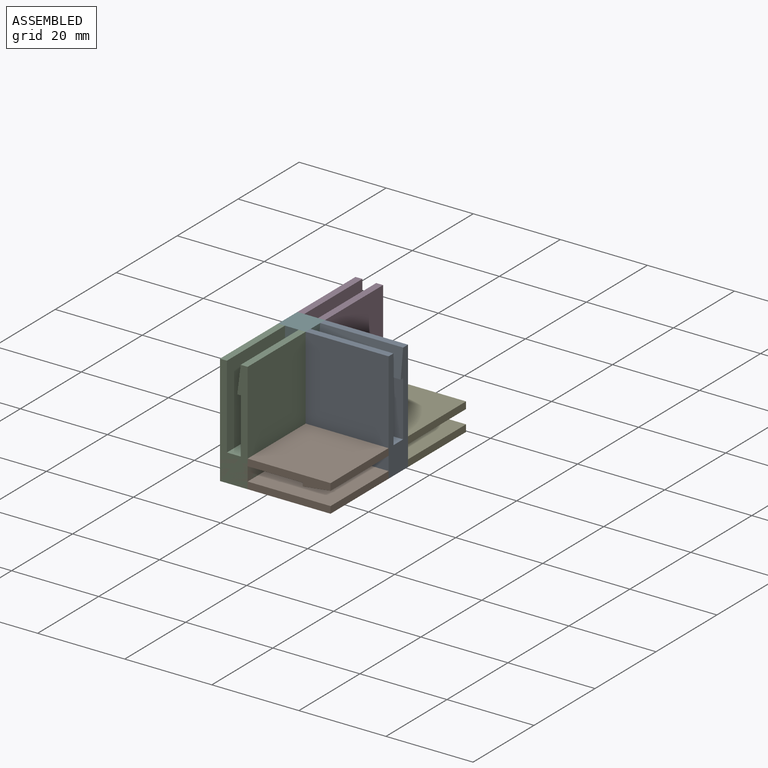
[diagram: assembled view]
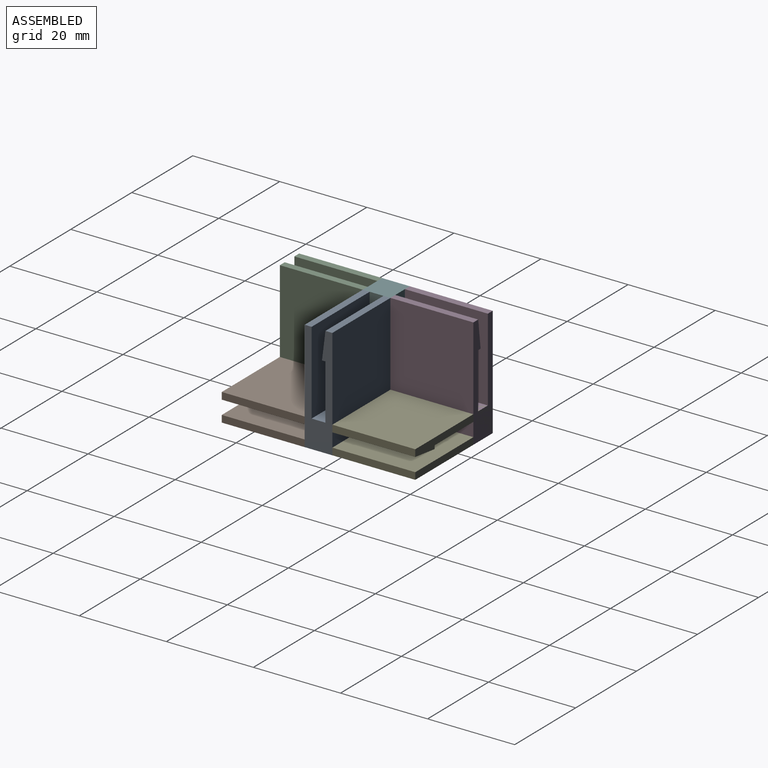
[diagram: assembled view, second angle]
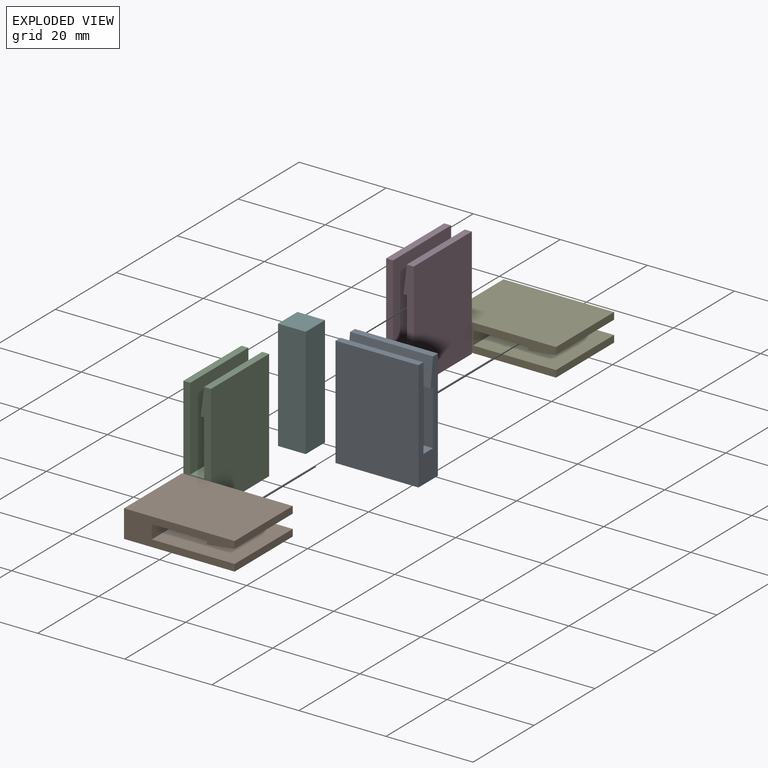
[diagram: exploded view]
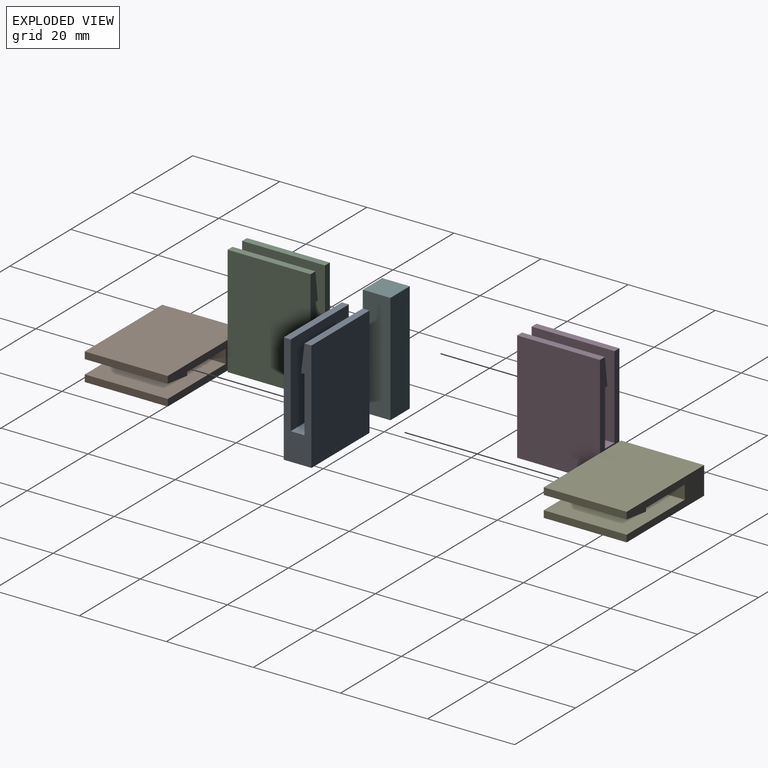
[diagram: exploded view, second angle]
ASSEMBLY  parts=6 mates=5
PART A: 12 faces, bbox 6.4x19.1x25.4 mm
  f0: plane 19.05x3.18mm, normal (0,0,1), area 60.5mm2, adj f1,f9,f10,f11
  f1: plane 19.05x19.05mm, normal (1,0,0), area 362.9mm2, adj f0,f2,f10,f11
  f2: plane 19.05x1.59mm, normal (0,0,1), area 30.2mm2, adj f1,f3,f10,f11
  f3: plane 25.4x19.05mm, normal (-1,0,0), area 483.9mm2, adj f2,f4,f10,f11
  f4: plane 19.05x6.35mm, normal (0,0,-1), area 121mm2, adj f3,f5,f10,f11
  f5: plane 25.4x19.05mm, normal (1,0,0), area 483.9mm2, adj f4,f6,f10,f11
  f6: plane 19.05x1.59mm, normal (0,0,1), area 30.2mm2, adj f5,f7,f10,f11
  f7: plane 19.05x6.35mm, normal (-0.99,0,0.12), area 121.9mm2, adj f6,f8,f10,f11
  f8: plane 19.05x0.79mm, normal (0,0,-1), area 15.1mm2, adj f7,f9,f10,f11
  f9: plane 19.05x12.7mm, normal (-1,0,0), area 241.9mm2, adj f0,f8,f10,f11
  f10: plane 25.4x6.35mm, normal (0,-1,0), area 103.3mm2, adj f0,f1,f2,f3,f4,f5,f6,f7
  f11: plane 25.4x6.35mm, normal (0,1,0), area 103.3mm2, adj f0,f1,f2,f3,f4,f5,f6,f7
PART B: same geometry as A
PART C: same geometry as A
PART D: same geometry as A
PART E: same geometry as A
PART F: 6 faces, bbox 6.4x6.4x25.4 mm
  f0: plane 25.4x6.35mm, normal (-1,0,0), area 161.3mm2, adj f1,f3,f4,f5
  f1: plane 6.35x6.35mm, normal (0,0,-1), area 40.3mm2, adj f0,f2,f4,f5
  f2: plane 25.4x6.35mm, normal (1,0,0), area 161.3mm2, adj f1,f3,f4,f5
  f3: plane 6.35x6.35mm, normal (0,0,1), area 40.3mm2, adj f0,f2,f4,f5
  f4: plane 25.4x6.35mm, normal (0,-1,0), area 161.3mm2, adj f0,f1,f2,f3
  f5: plane 25.4x6.35mm, normal (0,1,0), area 161.3mm2, adj f0,f1,f2,f3
PLACE A rot(axis=(0,0,1),90deg) t=(-23.37,12.73,6.86)mm
PLACE B rot(axis=(0.71,0,0.71),180deg) t=(-29.72,-6.32,6.86)mm
PLACE C t=(-29.72,12.73,6.86)mm
PLACE D t=(-29.72,38.13,6.86)mm
PLACE E rot(axis=(0.71,0,0.71),180deg) t=(-29.72,19.08,6.86)mm
PLACE F t=(-41.32,19.08,6.86)mm
MATE fastened F.f2 <-> A.f11  axis (1,0,0) through (-23.37,12.73,32.26)mm
MATE fastened F.f4 <-> C.f11  axis (0,-1,0) through (-29.72,12.73,32.26)mm
MATE fastened F.f5 <-> D.f10  axis (0,1,0) through (-29.72,19.08,32.26)mm
MATE fastened E.f10 <-> D.f11  axis (0,1,0) through (-29.72,38.13,6.86)mm
MATE fastened B.f10 <-> C.f11  axis (0,1,0) through (-29.72,12.73,6.86)mm
